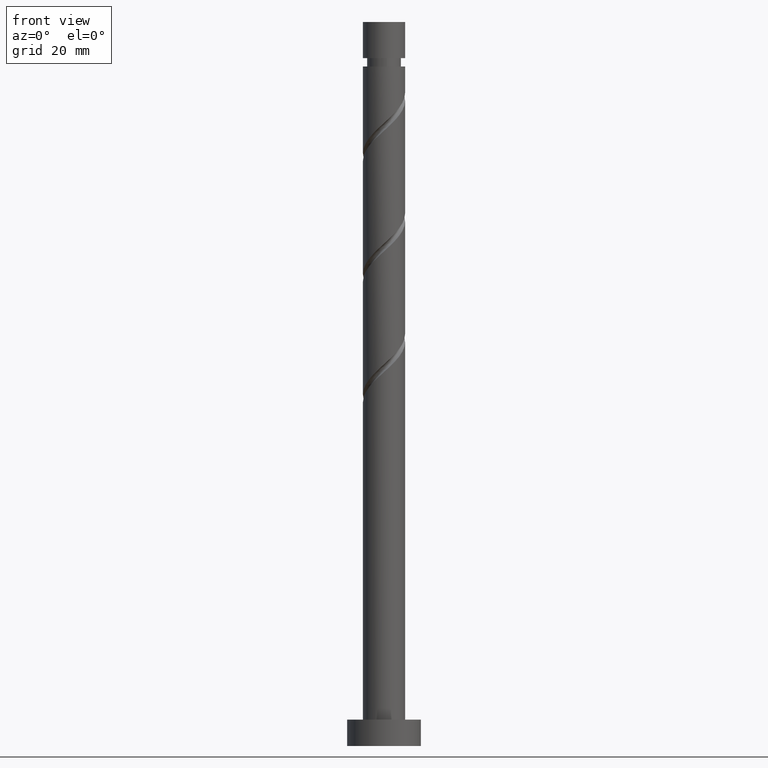
[diagram: clean part render]
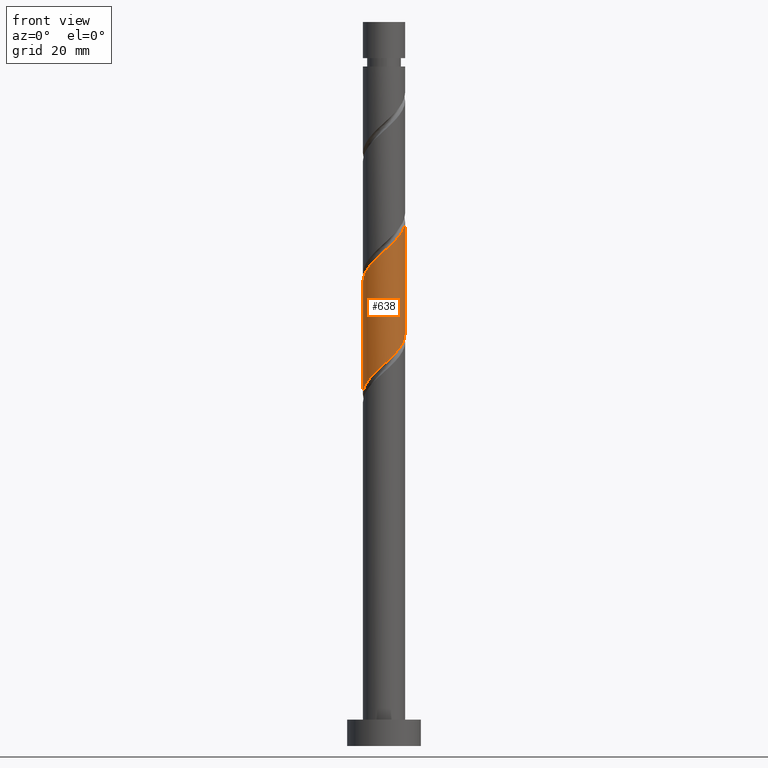
[diagram: same view with one face highlighted and labeled with its STEP entity id]
A machine part, front view. The second image highlights one B-rep face of the part: STEP entity #638.
In plain terms, the highlighted cylindrical surface (edge-blend (fillet) strip) has radius 4 mm, axis along (-0, -0, -1).
Its self-contained STEP definition (entity closure, byte-faithful):
#31 = CARTESIAN_POINT ( 'NONE',  ( 0.1751229436131130912, -4.046072422684867220, 94.09011983458768213 ) ) ;
#40 = CARTESIAN_POINT ( 'NONE',  ( -3.482167122072592047, -1.968378046503448386, 90.07999483458769419 ) ) ;
#89 = CARTESIAN_POINT ( 'NONE',  ( -3.974115965681417784, -0.4543151893961412391, 67.16499483458767372 ) ) ;
#91 = VERTEX_POINT ( 'NONE', #148 ) ;
#116 = CARTESIAN_POINT ( 'NONE',  ( -4.000000000000000888, 4.827779096192269279E-15, 66.75047433600965974 ) ) ;
#148 = CARTESIAN_POINT ( 'NONE',  ( -4.000000000000000888, 4.827779096192269279E-15, 66.75047433600965974 ) ) ;
#196 = CARTESIAN_POINT ( 'NONE',  ( 1.083753322405396124, -3.902159508677974564, 73.46661983458767509 ) ) ;
#197 = LINE ( 'NONE', #940, #1291 ) ;
#236 = ORIENTED_EDGE ( 'NONE', *, *, #580, .T. ) ;
#289 = CARTESIAN_POINT ( 'NONE',  ( 3.170406666830032805, -2.519899137249413723, 75.75811983458767429 ) ) ;
#312 = CARTESIAN_POINT ( 'NONE',  ( 0.000000000000000000, 0.000000000000000000, 137.4900000000000091 ) ) ;
#316 = CARTESIAN_POINT ( 'NONE',  ( 4.000000000000007105, 3.268496406738844695E-15, 99.66051533316570499 ) ) ;
#326 = FACE_OUTER_BOUND ( 'NONE', #1302, .T. ) ;
#365 = LINE ( 'NONE', #461, #1552 ) ;
#401 = CARTESIAN_POINT ( 'NONE',  ( 1.416856955757479275, -3.793927577315144184, 95.23586983458767463 ) ) ;
#404 = EDGE_CURVE ( 'NONE', #1526, #91, #1225, .T. ) ;
#415 = CARTESIAN_POINT ( 'NONE',  ( -2.236544262273468142, -3.376276034017708483, 91.79861983458766872 ) ) ;
#430 = DIRECTION ( 'NONE',  ( -0.000000000000000000, -0.000000000000000000, -1.000000000000000000 ) ) ;
#440 = CYLINDRICAL_SURFACE ( 'NONE', #1525, 4.000000000000000000 ) ;
#453 = CARTESIAN_POINT ( 'NONE',  ( 4.000000000000006217, -0.2278949497857279960, 99.45206829592484610 ) ) ;
#461 = CARTESIAN_POINT ( 'NONE',  ( 4.000000000000000000, 4.898587196589412829E-16, 137.4900000000000091 ) ) ;
#517 = CARTESIAN_POINT ( 'NONE',  ( -2.703475464551753582, -2.948087585633562213, 91.22574483458768668 ) ) ;
#547 = CARTESIAN_POINT ( 'NONE',  ( 3.376276034017708483, -2.236544262273469030, 97.52736983458765962 ) ) ;
#570 = CARTESIAN_POINT ( 'NONE',  ( -1.416856955757478831, -3.793927577315137079, 71.17511983458767588 ) ) ;
#580 = EDGE_CURVE ( 'NONE', #1182, #91, #197, .T. ) ;
#591 = DIRECTION ( 'NONE',  ( -0.000000000000000000, -0.000000000000000000, -1.000000000000000000 ) ) ;
#599 = CARTESIAN_POINT ( 'NONE',  ( 4.000000000000007105, 3.268496406738844695E-15, 99.66051533316570499 ) ) ;
#638 = ADVANCED_FACE ( 'NONE', ( #326 ), #440, .T. ) ;
#646 = CARTESIAN_POINT ( 'NONE',  ( -4.000000000000007105, -3.808248106934250505E-15, 88.20301533316568054 ) ) ;
#674 = ORIENTED_EDGE ( 'NONE', *, *, #404, .F. ) ;
#678 = CARTESIAN_POINT ( 'NONE',  ( 3.902159508677980337, -1.083753322405399455, 98.67311983458768054 ) ) ;
#707 = CARTESIAN_POINT ( 'NONE',  ( -4.000000000000007105, -3.808248106934250505E-15, 88.20301533316568054 ) ) ;
#752 = CARTESIAN_POINT ( 'NONE',  ( -3.920000000000007034, -0.7959899496852967937, 88.93424483458768748 ) ) ;
#778 =( BOUNDED_CURVE ( )  B_SPLINE_CURVE ( 2, ( #646, #1489, #752, #1505, #40, #999, #517, #415, #1375, #872, #1354, #31, #1016, #401, #885, #1367, #1028, #547, #1281, #678, #1535, #453, #316 ),
 .UNSPECIFIED., .F., .T. ) 
 B_SPLINE_CURVE_WITH_KNOTS ( ( 3, 2, 2, 2, 2, 2, 2, 2, 2, 2, 2, 3 ),
 ( 0.3045322023138550271, 0.3125000000000000000, 0.3249999999999999556, 0.3375000000000000222, 0.3499999999999999778, 0.3625000000000000444, 0.3750000000000000000, 0.3874999999999999556, 0.4000000000000000222, 0.4124999999999999778, 0.4250000000000000444, 0.4295322023138553047 ),
 .UNSPECIFIED. ) 
 CURVE ( )  GEOMETRIC_REPRESENTATION_ITEM ( )  RATIONAL_B_SPLINE_CURVE ( ( 0.9039174447099409537, 0.9019565955404700297, 0.9090909090909186085, 0.8978984914501346726, 0.9090909090909186085, 0.8978984914501346726, 0.9090909090909186085, 0.8978984914501346726, 0.9090909090909186085, 0.8978984914501346726, 0.9090909090909186085, 0.8978984914501346726, 0.9090909090909186085, 0.8978984914501346726, 0.9090909090909186085, 0.8978984914501346726, 0.9090909090909186085, 0.8978984914501346726, 0.9090909090909186085, 0.8978984914501346726, 0.9090909090909186085, 0.9050328050005829184, 0.9039174447099407317 ) ) 
 REPRESENTATION_ITEM ( '' )  );
#793 = CARTESIAN_POINT ( 'NONE',  ( -3.376276034017703154, -2.236544262273462813, 68.88361983458767668 ) ) ;
#802 = CARTESIAN_POINT ( 'NONE',  ( -3.902159508677974564, -1.083753322405396347, 67.73786983458766997 ) ) ;
#822 = DIRECTION ( 'NONE',  ( -1.000000000000000000, 0.000000000000000000, 0.000000000000000000 ) ) ;
#872 = CARTESIAN_POINT ( 'NONE',  ( -1.083753322405399011, -3.902159508677980337, 92.94436983458768964 ) ) ;
#875 = CARTESIAN_POINT ( 'NONE',  ( 3.919999999999999929, -0.7959899496852969047, 77.47674483458769146 ) ) ;
#885 = CARTESIAN_POINT ( 'NONE',  ( 1.968378046503448386, -3.482167122072592047, 95.80874483458768509 ) ) ;
#903 = CARTESIAN_POINT ( 'NONE',  ( -0.1751229436131145900, -4.046072422684861891, 72.32086983458765417 ) ) ;
#912 = ORIENTED_EDGE ( 'NONE', *, *, #1409, .F. ) ;
#940 = CARTESIAN_POINT ( 'NONE',  ( -4.000000000000000000, 0.000000000000000000, 137.4900000000000091 ) ) ;
#999 = CARTESIAN_POINT ( 'NONE',  ( -3.170406666830039022, -2.519899137249416832, 90.65286983458767622 ) ) ;
#1004 = CARTESIAN_POINT ( 'NONE',  ( 2.236544262273462813, -3.376276034017703154, 74.61236983458765337 ) ) ;
#1012 = CARTESIAN_POINT ( 'NONE',  ( 3.793927577315137079, -1.416856955757479053, 76.90386983458766679 ) ) ;
#1016 = CARTESIAN_POINT ( 'NONE',  ( 0.7959899496852964607, -3.920000000000007034, 94.66299483458766417 ) ) ;
#1020 = CARTESIAN_POINT ( 'NONE',  ( 4.000000000000000000, 5.817323879883851002E-15, 78.20797433600966997 ) ) ;
#1028 = CARTESIAN_POINT ( 'NONE',  ( 2.948087585633562213, -2.703475464551753582, 96.95449483458770601 ) ) ;
#1046 = CARTESIAN_POINT ( 'NONE',  ( -3.639217771347837971, -1.660148792339430468, 68.31074483458768043 ) ) ;
#1049 = ORIENTED_EDGE ( 'NONE', *, *, #1529, .F. ) ;
#1053 = CARTESIAN_POINT ( 'NONE',  ( -4.000000000000000888, -0.2278949497857289119, 66.95892137325051863 ) ) ;
#1140 = CARTESIAN_POINT ( 'NONE',  ( 4.000000000000000000, 5.817323879883851002E-15, 78.20797433600966997 ) ) ;
#1182 = VERTEX_POINT ( 'NONE', #707 ) ;
#1225 =( BOUNDED_CURVE ( )  B_SPLINE_CURVE ( 2, ( #1020, #1389, #875, #1012, #1378, #289, #1231, #1004, #1253, #196, #1284, #903, #1406, #570, #1415, #1269, #1394, #793, #1046, #802, #89, #1053, #116 ),
 .UNSPECIFIED., .F., .T. ) 
 B_SPLINE_CURVE_WITH_KNOTS ( ( 3, 2, 2, 2, 2, 2, 2, 2, 2, 2, 2, 3 ),
 ( 0.8045322023138551382, 0.8125000000000000000, 0.8249999999999999556, 0.8375000000000000222, 0.8499999999999999778, 0.8625000000000000444, 0.8750000000000000000, 0.8874999999999999556, 0.9000000000000000222, 0.9124999999999999778, 0.9250000000000000444, 0.9295322023138552492 ),
 .UNSPECIFIED. ) 
 CURVE ( )  GEOMETRIC_REPRESENTATION_ITEM ( )  RATIONAL_B_SPLINE_CURVE ( ( 0.9039174447099351806, 0.9019565955404644786, 0.9090909090909128354, 0.8978984914501290104, 0.9090909090909128354, 0.8978984914501290104, 0.9090909090909128354, 0.8978984914501290104, 0.9090909090909128354, 0.8978984914501290104, 0.9090909090909128354, 0.8978984914501290104, 0.9090909090909128354, 0.8978984914501290104, 0.9090909090909128354, 0.8978984914501290104, 0.9090909090909128354, 0.8978984914501290104, 0.9090909090909128354, 0.8978984914501290104, 0.9090909090909128354, 0.9050328050005771452, 0.9039174447099349585 ) ) 
 REPRESENTATION_ITEM ( '' )  );
#1231 = CARTESIAN_POINT ( 'NONE',  ( 2.703475464551749141, -2.948087585633559105, 75.18524483458767804 ) ) ;
#1253 = CARTESIAN_POINT ( 'NONE',  ( 1.660148792339430468, -3.639217771347837971, 74.03949483458767133 ) ) ;
#1269 = CARTESIAN_POINT ( 'NONE',  ( -2.519899137249413723, -3.170406666830032805, 70.02936983458765496 ) ) ;
#1281 = CARTESIAN_POINT ( 'NONE',  ( 3.639217771347843300, -1.660148792339434465, 98.10024483458771272 ) ) ;
#1284 = CARTESIAN_POINT ( 'NONE',  ( 0.4543151893961410170, -3.974115965681417784, 72.89374483458766463 ) ) ;
#1291 = VECTOR ( 'NONE', #430, 1000.000000000000000 ) ;
#1302 = EDGE_LOOP ( 'NONE', ( #912, #1049, #236, #674 ) ) ;
#1324 = VERTEX_POINT ( 'NONE', #599 ) ;
#1354 = CARTESIAN_POINT ( 'NONE',  ( -0.4543151893961431820, -3.974115965681424001, 93.51724483458767168 ) ) ;
#1367 = CARTESIAN_POINT ( 'NONE',  ( 2.519899137249416832, -3.170406666830039022, 96.38161983458768134 ) ) ;
#1375 = CARTESIAN_POINT ( 'NONE',  ( -1.660148792339434465, -3.639217771347843300, 92.37149483458769339 ) ) ;
#1378 = CARTESIAN_POINT ( 'NONE',  ( 3.482167122072585830, -1.968378046503446832, 76.33099483458764212 ) ) ;
#1389 = CARTESIAN_POINT ( 'NONE',  ( 4.000000000000000888, -0.4020151261036825074, 77.84026604742705047 ) ) ;
#1394 = CARTESIAN_POINT ( 'NONE',  ( -2.948087585633559105, -2.703475464551749141, 69.45649483458767293 ) ) ;
#1406 = CARTESIAN_POINT ( 'NONE',  ( -0.7959899496852967937, -3.919999999999999929, 71.74799483458767213 ) ) ;
#1407 = DIRECTION ( 'NONE',  ( -0.000000000000000000, -0.000000000000000000, -1.000000000000000000 ) ) ;
#1409 = EDGE_CURVE ( 'NONE', #1324, #1526, #365, .T. ) ;
#1415 = CARTESIAN_POINT ( 'NONE',  ( -1.968378046503446388, -3.482167122072585830, 70.60224483458766542 ) ) ;
#1489 = CARTESIAN_POINT ( 'NONE',  ( -4.000000000000008882, -0.4020151261036760681, 88.57072362174828584 ) ) ;
#1505 = CARTESIAN_POINT ( 'NONE',  ( -3.793927577315144184, -1.416856955757479941, 89.50711983458768373 ) ) ;
#1525 = AXIS2_PLACEMENT_3D ( 'NONE', #312, #1407, #822 ) ;
#1526 = VERTEX_POINT ( 'NONE', #1140 ) ;
#1529 = EDGE_CURVE ( 'NONE', #1182, #1324, #778, .T. ) ;
#1535 = CARTESIAN_POINT ( 'NONE',  ( 3.974115965681424001, -0.4543151893961434040, 99.24599483458767679 ) ) ;
#1552 = VECTOR ( 'NONE', #591, 1000.000000000000000 ) ;